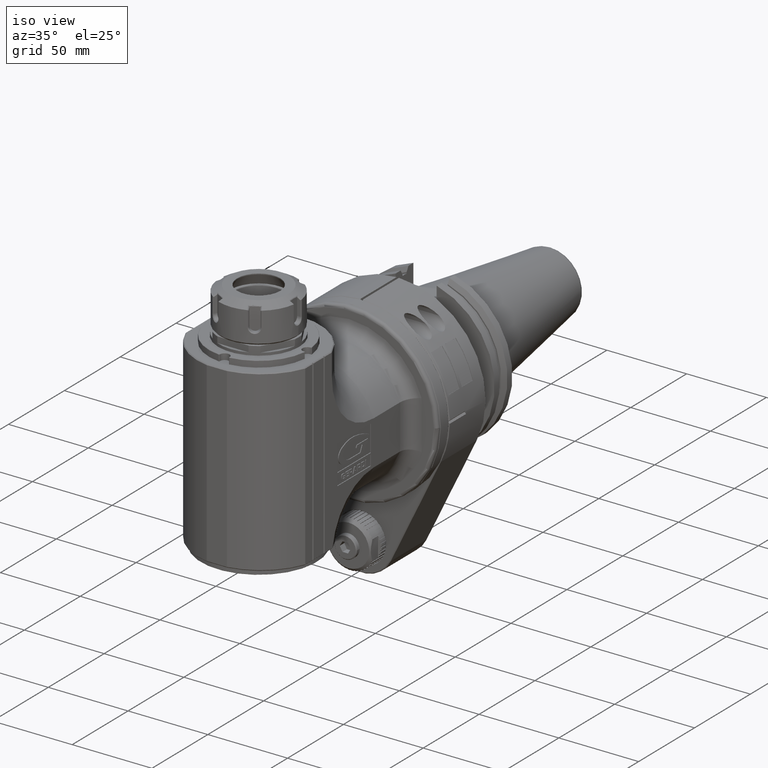
[diagram: clean part render]
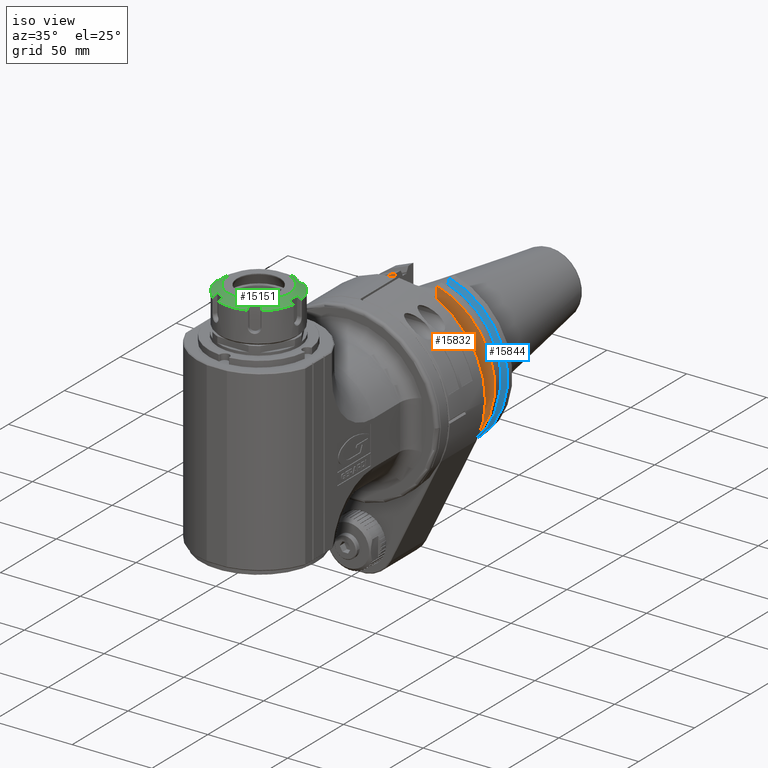
[diagram: same view with three faces highlighted in distinct colors, each labeled with its STEP entity id]
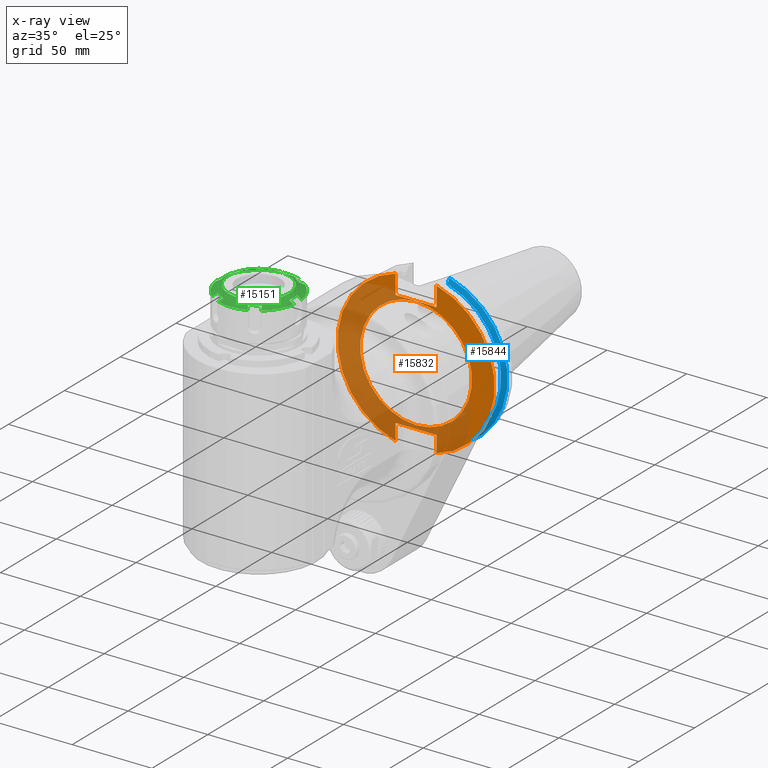
[diagram: x-ray of the same camera — body ghosted, the three highlighted faces saturated]
A machine part, iso view with three faces highlighted in distinct colors.
The next image is the same camera in x-ray (body ghosted, the three faces saturated) — at least one of them is partly hidden behind the body in this view.
Their STEP definitions:

[orange] entity #15832 — the highlighted planar face has unit normal (-0, -1, 0).
#714=FACE_BOUND('',#3013,.T.);
#1196=PLANE('',#17358);
#2055=FACE_OUTER_BOUND('',#3012,.T.);
#3012=EDGE_LOOP('',(#14659,#14660,#14661,#14662,#14663,#14664,#14665,#14666));
#3013=EDGE_LOOP('',(#14667));
#3648=CIRCLE('',#17359,49.21);
#3649=CIRCLE('',#17360,49.21);
#3650=CIRCLE('',#17361,35.);
#4962=LINE('',#29915,#6284);
#4969=LINE('',#29936,#6291);
#4975=LINE('',#29958,#6297);
#4976=LINE('',#29963,#6298);
#4977=LINE('',#29965,#6299);
#4978=LINE('',#29967,#6300);
#6284=VECTOR('',#21576,10.30264834722);
#6291=VECTOR('',#21585,25.7);
#6297=VECTOR('',#21595,10.30264834722);
#6298=VECTOR('',#21600,12.20264834722);
#6299=VECTOR('',#21601,25.7);
#6300=VECTOR('',#21602,12.20264834722);
#7780=VERTEX_POINT('',#29912);
#7781=VERTEX_POINT('',#29914);
#7788=VERTEX_POINT('',#29934);
#7796=VERTEX_POINT('',#29956);
#7797=VERTEX_POINT('',#29960);
#7798=VERTEX_POINT('',#29962);
#7799=VERTEX_POINT('',#29964);
#7800=VERTEX_POINT('',#29966);
#7801=VERTEX_POINT('',#29969);
#10078=EDGE_CURVE('',#7780,#7781,#4962,.T.);
#10087=EDGE_CURVE('',#7780,#7788,#4969,.T.);
#10096=EDGE_CURVE('',#7788,#7796,#4975,.T.);
#10097=EDGE_CURVE('',#7797,#7796,#3648,.T.);
#10098=EDGE_CURVE('',#7798,#7797,#4976,.T.);
#10099=EDGE_CURVE('',#7799,#7798,#4977,.T.);
#10100=EDGE_CURVE('',#7799,#7800,#4978,.T.);
#10101=EDGE_CURVE('',#7781,#7800,#3649,.T.);
#10102=EDGE_CURVE('',#7801,#7801,#3650,.T.);
#14659=ORIENTED_EDGE('',*,*,#10096,.T.);
#14660=ORIENTED_EDGE('',*,*,#10097,.F.);
#14661=ORIENTED_EDGE('',*,*,#10098,.F.);
#14662=ORIENTED_EDGE('',*,*,#10099,.F.);
#14663=ORIENTED_EDGE('',*,*,#10100,.T.);
#14664=ORIENTED_EDGE('',*,*,#10101,.F.);
#14665=ORIENTED_EDGE('',*,*,#10078,.F.);
#14666=ORIENTED_EDGE('',*,*,#10087,.T.);
#14667=ORIENTED_EDGE('',*,*,#10102,.F.);
#15832=ADVANCED_FACE('',(#2055,#714),#1196,.T.);
#17358=AXIS2_PLACEMENT_3D('',#29959,#21596,#21597);
#17359=AXIS2_PLACEMENT_3D('',#29961,#21598,#21599);
#17360=AXIS2_PLACEMENT_3D('',#29968,#21603,#21604);
#17361=AXIS2_PLACEMENT_3D('',#29970,#21605,#21606);
#21576=DIRECTION('',(-3.069031444701E-14,0.,-1.));
#21585=DIRECTION('',(1.,0.,0.));
#21595=DIRECTION('',(3.034547945323E-14,0.,-1.));
#21596=DIRECTION('center_axis',(0.,-1.,0.));
#21597=DIRECTION('ref_axis',(0.,0.,1.));
#21598=DIRECTION('center_axis',(0.,1.,0.));
#21599=DIRECTION('ref_axis',(0.261125787441599,0.,0.965304782508097));
#21600=DIRECTION('',(2.605728405875E-14,0.,1.));
#21601=DIRECTION('',(1.,0.,0.));
#21602=DIRECTION('',(-2.605728405875E-14,0.,1.));
#21603=DIRECTION('center_axis',(0.,1.,0.));
#21604=DIRECTION('ref_axis',(-0.261125787441599,0.,-0.965304782508097));
#21605=DIRECTION('center_axis',(0.,-1.,0.));
#21606=DIRECTION('ref_axis',(0.,0.,1.));
#29912=CARTESIAN_POINT('',(-12.85,48.9,-37.2));
#29914=CARTESIAN_POINT('',(-12.85,48.9000000000001,-47.50264834722));
#29915=CARTESIAN_POINT('',(-12.85,48.9,-37.2));
#29934=CARTESIAN_POINT('',(12.85,48.9,-37.2));
#29936=CARTESIAN_POINT('',(-12.85,48.9,-37.2));
#29956=CARTESIAN_POINT('',(12.85,48.9000000000001,-47.50264834722));
#29958=CARTESIAN_POINT('',(12.85,48.9,-37.2));
#29959=CARTESIAN_POINT('Origin',(0.,48.9,2.00000000003435E-20));
#29960=CARTESIAN_POINT('',(12.85,48.9000000000001,47.50264834722));
#29961=CARTESIAN_POINT('Origin',(0.,48.9000000000003,-1.480248809205E-14));
#29962=CARTESIAN_POINT('',(12.85,48.9,35.3));
#29963=CARTESIAN_POINT('',(12.85,48.9,35.3));
#29964=CARTESIAN_POINT('',(-12.85,48.9,35.3));
#29965=CARTESIAN_POINT('',(-12.85,48.9,35.3));
#29966=CARTESIAN_POINT('',(-12.85,48.9000000000003,47.50264834722));
#29967=CARTESIAN_POINT('',(-12.85,48.9,35.3));
#29968=CARTESIAN_POINT('Origin',(0.,48.9000000000003,-1.480248809205E-14));
#29969=CARTESIAN_POINT('',(4.28626379701574E-15,48.9,-35.));
#29970=CARTESIAN_POINT('Origin',(0.,48.9,-2.65337952111E-15));

[blue] entity #15844 — the highlighted conical surface has half-angle 60 deg.
#233=CONICAL_SURFACE('',#17380,47.7912976321,1.0471975511966);
#633=(
BOUNDED_CURVE()
B_SPLINE_CURVE(2,(#29943,#29944,#29945),.UNSPECIFIED.,.F.,.F.)
B_SPLINE_CURVE_WITH_KNOTS((3,3),(0.823553183506386,1.11194731601354),
 .UNSPECIFIED.)
CURVE()
GEOMETRIC_REPRESENTATION_ITEM()
RATIONAL_B_SPLINE_CURVE((1.02798139258353,1.03149394839377,1.03403527585196))
REPRESENTATION_ITEM('')
);
#638=(
BOUNDED_CURVE()
B_SPLINE_CURVE(2,(#30019,#30020,#30021),.UNSPECIFIED.,.F.,.F.)
B_SPLINE_CURVE_WITH_KNOTS((3,3),(-1.11194731601358,-0.823553183506386),
 .UNSPECIFIED.)
CURVE()
GEOMETRIC_REPRESENTATION_ITEM()
RATIONAL_B_SPLINE_CURVE((1.03403527585196,1.03149394839377,1.02798139258353))
REPRESENTATION_ITEM('')
);
#2067=FACE_OUTER_BOUND('',#3025,.T.);
#3025=EDGE_LOOP('',(#14724,#14725,#14726,#14727));
#3657=CIRCLE('',#17379,49.21);
#3658=CIRCLE('',#17381,46.37259526419);
#7790=VERTEX_POINT('',#29940);
#7791=VERTEX_POINT('',#29942);
#7812=VERTEX_POINT('',#30016);
#7813=VERTEX_POINT('',#30018);
#10090=EDGE_CURVE('',#7790,#7791,#633,.T.);
#10123=EDGE_CURVE('',#7812,#7813,#638,.T.);
#10125=EDGE_CURVE('',#7813,#7790,#3657,.T.);
#10126=EDGE_CURVE('',#7812,#7791,#3658,.T.);
#14724=ORIENTED_EDGE('',*,*,#10090,.F.);
#14725=ORIENTED_EDGE('',*,*,#10125,.F.);
#14726=ORIENTED_EDGE('',*,*,#10123,.F.);
#14727=ORIENTED_EDGE('',*,*,#10126,.T.);
#15844=ADVANCED_FACE('',(#2067),#233,.T.);
#17379=AXIS2_PLACEMENT_3D('',#30024,#21653,#21654);
#17380=AXIS2_PLACEMENT_3D('',#30025,#21655,#21656);
#17381=AXIS2_PLACEMENT_3D('',#30026,#21657,#21658);
#21653=DIRECTION('center_axis',(0.,1.,0.));
#21654=DIRECTION('ref_axis',(0.261125787441599,0.,0.965304782508097));
#21655=DIRECTION('center_axis',(0.,1.,0.));
#21656=DIRECTION('ref_axis',(0.,0.,-1.));
#21657=DIRECTION('center_axis',(0.,1.,0.));
#21658=DIRECTION('ref_axis',(0.277103317741691,0.,0.96084012785507));
#29940=CARTESIAN_POINT('',(12.85,60.41317638802,-47.50264834722));
#29942=CARTESIAN_POINT('',(12.85,58.774999999999,-44.55665036262));
#29943=CARTESIAN_POINT('Ctrl Pts',(12.85,60.4131763880155,-47.502648347221));
#29944=CARTESIAN_POINT('Ctrl Pts',(12.85,59.5678764782693,-45.9859228343631));
#29945=CARTESIAN_POINT('Ctrl Pts',(12.85,58.7749999999978,-44.5566503626167));
#30016=CARTESIAN_POINT('',(12.85,58.774999999998,44.55665036262));
#30018=CARTESIAN_POINT('',(12.85,60.41317638802,47.50264834722));
#30019=CARTESIAN_POINT('Ctrl Pts',(12.85,58.7749999999975,44.5566503626162));
#30020=CARTESIAN_POINT('Ctrl Pts',(12.85,59.5678764782692,45.9859228343628));
#30021=CARTESIAN_POINT('Ctrl Pts',(12.85,60.4131763880155,47.502648347221));
#30024=CARTESIAN_POINT('Origin',(0.,60.41317638802,-1.480248809205E-14));
#30025=CARTESIAN_POINT('Origin',(0.,59.59408819401,-1.480248809205E-14));
#30026=CARTESIAN_POINT('Origin',(0.,58.774999999998,-1.480248809205E-14));

[green] entity #15151 — the highlighted conical surface has half-angle 60 deg.
#156=CONICAL_SURFACE('',#16261,21.875,1.0471975511966);
#386=B_SPLINE_CURVE_WITH_KNOTS('',3,(#23593,#23594,#23595,#23596,#23597,
#23598),.UNSPECIFIED.,.F.,.F.,(4,2,4),(1.75304187007137E-6,0.17996819413628,
0.354706484369511),.UNSPECIFIED.);
#387=B_SPLINE_CURVE_WITH_KNOTS('',3,(#23600,#23601,#23602,#23603,#23604,
#23605),.UNSPECIFIED.,.F.,.F.,(4,2,4),(6.56432522016495E-6,0.158648987589826,
0.312349172762832),.UNSPECIFIED.);
#388=B_SPLINE_CURVE_WITH_KNOTS('',3,(#23614,#23615,#23616,#23617,#23618,
#23619),.UNSPECIFIED.,.F.,.F.,(4,2,4),(9.99999987011391E-7,0.153548746783539,
0.311883061010087),.UNSPECIFIED.);
#389=B_SPLINE_CURVE_WITH_KNOTS('',3,(#23621,#23622,#23623,#23624,#23625,
#23626,#23627,#23628),.UNSPECIFIED.,.F.,.F.,(4,2,2,4),(3.04414033368429E-6,
0.177048169692717,0.353291981125611,0.710275238715061),.UNSPECIFIED.);
#390=B_SPLINE_CURVE_WITH_KNOTS('',3,(#23630,#23631,#23632,#23633,#23634,
#23635),.UNSPECIFIED.,.F.,.F.,(4,2,4),(1.32933227955289E-6,0.158569850540681,
0.312342940408613),.UNSPECIFIED.);
#391=B_SPLINE_CURVE_WITH_KNOTS('',3,(#23644,#23645,#23646,#23647,#23648,
#23649),.UNSPECIFIED.,.F.,.F.,(4,2,4),(9.99999984052789E-7,0.153549233279315,
0.311884353468715),.UNSPECIFIED.);
#392=B_SPLINE_CURVE_WITH_KNOTS('',3,(#23651,#23652,#23653,#23654,#23655,
#23656,#23657,#23658,#23659,#23660),.UNSPECIFIED.,.F.,.F.,(4,2,2,2,4),(3.43894642304029E-6,
0.179256816632653,0.356213165136128,0.532342430280622,0.709279107649565),
 .UNSPECIFIED.);
#393=B_SPLINE_CURVE_WITH_KNOTS('',3,(#23662,#23663,#23664,#23665,#23666,
#23667),.UNSPECIFIED.,.F.,.F.,(4,2,4),(2.07933996886511E-6,0.15856975594841,
0.312342359709188),.UNSPECIFIED.);
#394=B_SPLINE_CURVE_WITH_KNOTS('',3,(#23672,#23673,#23674,#23675,#23676,
#23677),.UNSPECIFIED.,.F.,.F.,(4,2,4),(9.99999985206051E-7,0.15354880519204,
0.311879056820838),.UNSPECIFIED.);
#395=B_SPLINE_CURVE_WITH_KNOTS('',3,(#23679,#23680,#23681,#23682,#23683,
#23684),.UNSPECIFIED.,.F.,.F.,(4,2,4),(4.04179786290813E-6,0.17471943778046,
0.354667402657802),.UNSPECIFIED.);
#396=B_SPLINE_CURVE_WITH_KNOTS('',3,(#23686,#23687,#23688,#23689,#23690,
#23691),.UNSPECIFIED.,.F.,.F.,(4,2,4),(1.75304187039636E-6,0.1799681916321,
0.354706506524924),.UNSPECIFIED.);
#397=B_SPLINE_CURVE_WITH_KNOTS('',3,(#23693,#23694,#23695,#23696,#23697,
#23698),.UNSPECIFIED.,.F.,.F.,(4,2,4),(6.56392415075571E-6,0.158570174629406,
0.312342838192514),.UNSPECIFIED.);
#398=B_SPLINE_CURVE_WITH_KNOTS('',3,(#23707,#23708,#23709,#23710,#23711,
#23712),.UNSPECIFIED.,.F.,.F.,(4,2,4),(9.99999986928124E-7,0.15354874678184,
0.311883061007132),.UNSPECIFIED.);
#399=B_SPLINE_CURVE_WITH_KNOTS('',3,(#23714,#23715,#23716,#23717,#23718,
#23719,#23720,#23721),.UNSPECIFIED.,.F.,.F.,(4,2,2,4),(3.04414033422406E-6,
0.177048169692953,0.353291981126197,0.710275238716467),.UNSPECIFIED.);
#400=B_SPLINE_CURVE_WITH_KNOTS('',3,(#23723,#23724,#23725,#23726,#23727,
#23728),.UNSPECIFIED.,.F.,.F.,(4,2,4),(1.32933227850868E-6,0.158569850533765,
0.312342940387268),.UNSPECIFIED.);
#401=B_SPLINE_CURVE_WITH_KNOTS('',3,(#23737,#23738,#23739,#23740,#23741,
#23742),.UNSPECIFIED.,.F.,.F.,(4,2,4),(9.9999998453141E-7,0.15354923327797,
0.311884353450521),.UNSPECIFIED.);
#402=B_SPLINE_CURVE_WITH_KNOTS('',3,(#23744,#23745,#23746,#23747,#23748,
#23749,#23750,#23751,#23752,#23753),.UNSPECIFIED.,.F.,.F.,(4,2,2,2,4),(3.43894642381711E-6,
0.179256816427941,0.356213164731001,0.532342429128793,0.70927911520143),
 .UNSPECIFIED.);
#403=B_SPLINE_CURVE_WITH_KNOTS('',3,(#23755,#23756,#23757,#23758,#23759,
#23760),.UNSPECIFIED.,.F.,.F.,(4,2,4),(2.07505843591796E-6,0.158542687376933,
0.312340213231411),.UNSPECIFIED.);
#404=B_SPLINE_CURVE_WITH_KNOTS('',3,(#23769,#23770,#23771,#23772,#23773,
#23774),.UNSPECIFIED.,.F.,.F.,(4,2,4),(9.99999986983635E-7,0.153548805177098,
0.311879056789855),.UNSPECIFIED.);
#405=B_SPLINE_CURVE_WITH_KNOTS('',3,(#23775,#23776,#23777,#23778,#23779,
#23780),.UNSPECIFIED.,.F.,.F.,(4,2,4),(4.04179786372171E-6,0.174719437780483,
0.354667402657859),.UNSPECIFIED.);
#572=(
BOUNDED_CURVE()
B_SPLINE_CURVE(2,(#23579,#23580,#23581),.UNSPECIFIED.,.F.,.F.)
B_SPLINE_CURVE_WITH_KNOTS((3,3),(-1.82654082027049,-1.82066003771916),
 .UNSPECIFIED.)
CURVE()
GEOMETRIC_REPRESENTATION_ITEM()
RATIONAL_B_SPLINE_CURVE((1.10514898114972,1.10514190550912,1.10513378545536))
REPRESENTATION_ITEM('')
);
#573=(
BOUNDED_CURVE()
B_SPLINE_CURVE(2,(#23606,#23607,#23608),.UNSPECIFIED.,.F.,.F.)
B_SPLINE_CURVE_WITH_KNOTS((3,3),(1.82066009604865,1.82654082051237),
 .UNSPECIFIED.)
CURVE()
GEOMETRIC_REPRESENTATION_ITEM()
RATIONAL_B_SPLINE_CURVE((1.10513378565989,1.1051419056232,1.10514898119398))
REPRESENTATION_ITEM('')
);
#574=(
BOUNDED_CURVE()
B_SPLINE_CURVE(2,(#23610,#23611,#23612),.UNSPECIFIED.,.F.,.F.)
B_SPLINE_CURVE_WITH_KNOTS((3,3),(1.9062225038737,1.91210328641755),
 .UNSPECIFIED.)
CURVE()
GEOMETRIC_REPRESENTATION_ITEM()
RATIONAL_B_SPLINE_CURVE((1.10514898079948,1.10514190515945,1.10513378510626))
REPRESENTATION_ITEM('')
);
#575=(
BOUNDED_CURVE()
B_SPLINE_CURVE(2,(#23636,#23637,#23638),.UNSPECIFIED.,.F.,.F.)
B_SPLINE_CURVE_WITH_KNOTS((3,3),(1.82066003554759,1.82654081595318),
 .UNSPECIFIED.)
CURVE()
GEOMETRIC_REPRESENTATION_ITEM()
RATIONAL_B_SPLINE_CURVE((1.10513378467658,1.10514190472575,1.10514898036251))
REPRESENTATION_ITEM('')
);
#576=(
BOUNDED_CURVE()
B_SPLINE_CURVE(2,(#23640,#23641,#23642),.UNSPECIFIED.,.F.,.F.)
B_SPLINE_CURVE_WITH_KNOTS((3,3),(1.90622249082826,1.91210327336139),
 .UNSPECIFIED.)
CURVE()
GEOMETRIC_REPRESENTATION_ITEM()
RATIONAL_B_SPLINE_CURVE((1.10514898025349,1.10514190461434,1.10513378456203))
REPRESENTATION_ITEM('')
);
#577=(
BOUNDED_CURVE()
B_SPLINE_CURVE(2,(#23668,#23669,#23670),.UNSPECIFIED.,.F.,.F.)
B_SPLINE_CURVE_WITH_KNOTS((3,3),(1.82066003857861,1.82654081899518),
 .UNSPECIFIED.)
CURVE()
GEOMETRIC_REPRESENTATION_ITEM()
RATIONAL_B_SPLINE_CURVE((1.10513378522961,1.10514190527967,1.10514898091733))
REPRESENTATION_ITEM('')
);
#578=(
BOUNDED_CURVE()
B_SPLINE_CURVE(2,(#23699,#23700,#23701),.UNSPECIFIED.,.F.,.F.)
B_SPLINE_CURVE_WITH_KNOTS((3,3),(1.82066004008948,1.82654082051237),
 .UNSPECIFIED.)
CURVE()
GEOMETRIC_REPRESENTATION_ITEM()
RATIONAL_B_SPLINE_CURVE((1.10513378550536,1.10514190555587,1.10514898119398))
REPRESENTATION_ITEM('')
);
#579=(
BOUNDED_CURVE()
B_SPLINE_CURVE(2,(#23703,#23704,#23705),.UNSPECIFIED.,.F.,.F.)
B_SPLINE_CURVE_WITH_KNOTS((3,3),(1.9062225038737,1.91210328641755),
 .UNSPECIFIED.)
CURVE()
GEOMETRIC_REPRESENTATION_ITEM()
RATIONAL_B_SPLINE_CURVE((1.10514898079948,1.10514190515945,1.10513378510626))
REPRESENTATION_ITEM('')
);
#580=(
BOUNDED_CURVE()
B_SPLINE_CURVE(2,(#23729,#23730,#23731),.UNSPECIFIED.,.F.,.F.)
B_SPLINE_CURVE_WITH_KNOTS((3,3),(1.82066003554759,1.82654081595318),
 .UNSPECIFIED.)
CURVE()
GEOMETRIC_REPRESENTATION_ITEM()
RATIONAL_B_SPLINE_CURVE((1.10513378467658,1.10514190472575,1.10514898036251))
REPRESENTATION_ITEM('')
);
#581=(
BOUNDED_CURVE()
B_SPLINE_CURVE(2,(#23733,#23734,#23735),.UNSPECIFIED.,.F.,.F.)
B_SPLINE_CURVE_WITH_KNOTS((3,3),(1.90622249082826,1.91210327336139),
 .UNSPECIFIED.)
CURVE()
GEOMETRIC_REPRESENTATION_ITEM()
RATIONAL_B_SPLINE_CURVE((1.10514898025349,1.10514190461434,1.10513378456203))
REPRESENTATION_ITEM('')
);
#582=(
BOUNDED_CURVE()
B_SPLINE_CURVE(2,(#23761,#23762,#23763),.UNSPECIFIED.,.F.,.F.)
B_SPLINE_CURVE_WITH_KNOTS((3,3),(1.82066001950823,1.82654081899558),
 .UNSPECIFIED.)
CURVE()
GEOMETRIC_REPRESENTATION_ITEM()
RATIONAL_B_SPLINE_CURVE((1.10513378517697,1.10514190525675,1.10514898091736))
REPRESENTATION_ITEM('')
);
#583=(
BOUNDED_CURVE()
B_SPLINE_CURVE(2,(#23765,#23766,#23767),.UNSPECIFIED.,.F.,.F.)
B_SPLINE_CURVE_WITH_KNOTS((3,3),(-1.82654082027049,-1.82066003771916),
 .UNSPECIFIED.)
CURVE()
GEOMETRIC_REPRESENTATION_ITEM()
RATIONAL_B_SPLINE_CURVE((1.10514898114972,1.10514190550912,1.10513378545536))
REPRESENTATION_ITEM('')
);
#1374=FACE_OUTER_BOUND('',#2273,.T.);
#2273=EDGE_LOOP('',(#11016,#11017,#11018,#11019,#11020,#11021,#11022,#11023,
#11024,#11025,#11026,#11027,#11028,#11029,#11030,#11031,#11032,#11033,#11034,
#11035,#11036,#11037,#11038,#11039,#11040,#11041,#11042,#11043,#11044,#11045,
#11046,#11047,#11048,#11049,#11050,#11051,#11052,#11053,#11054,#11055,#11056));
#3222=CIRCLE('',#16254,24.75);
#3223=CIRCLE('',#16255,24.75);
#3224=CIRCLE('',#16256,24.75);
#3225=CIRCLE('',#16257,24.75);
#3226=CIRCLE('',#16258,24.75);
#3227=CIRCLE('',#16259,24.75);
#3228=CIRCLE('',#16262,19.);
#3884=LINE('',#23782,#5206);
#5206=VECTOR('',#18312,21.875);
#6597=VERTEX_POINT('',#23260);
#6598=VERTEX_POINT('',#23262);
#6601=VERTEX_POINT('',#23297);
#6602=VERTEX_POINT('',#23299);
#6605=VERTEX_POINT('',#23328);
#6606=VERTEX_POINT('',#23330);
#6610=VERTEX_POINT('',#23365);
#6611=VERTEX_POINT('',#23367);
#6614=VERTEX_POINT('',#23402);
#6615=VERTEX_POINT('',#23404);
#6618=VERTEX_POINT('',#23433);
#6619=VERTEX_POINT('',#23435);
#6624=VERTEX_POINT('',#23578);
#6626=VERTEX_POINT('',#23591);
#6627=VERTEX_POINT('',#23592);
#6628=VERTEX_POINT('',#23599);
#6629=VERTEX_POINT('',#23609);
#6630=VERTEX_POINT('',#23613);
#6631=VERTEX_POINT('',#23620);
#6632=VERTEX_POINT('',#23629);
#6633=VERTEX_POINT('',#23639);
#6634=VERTEX_POINT('',#23643);
#6635=VERTEX_POINT('',#23650);
#6636=VERTEX_POINT('',#23661);
#6637=VERTEX_POINT('',#23671);
#6638=VERTEX_POINT('',#23678);
#6639=VERTEX_POINT('',#23685);
#6640=VERTEX_POINT('',#23692);
#6641=VERTEX_POINT('',#23702);
#6642=VERTEX_POINT('',#23706);
#6643=VERTEX_POINT('',#23713);
#6644=VERTEX_POINT('',#23722);
#6645=VERTEX_POINT('',#23732);
#6646=VERTEX_POINT('',#23736);
#6647=VERTEX_POINT('',#23743);
#6648=VERTEX_POINT('',#23754);
#6649=VERTEX_POINT('',#23764);
#6650=VERTEX_POINT('',#23768);
#6651=VERTEX_POINT('',#23781);
#8260=EDGE_CURVE('',#6597,#6598,#3222,.T.);
#8264=EDGE_CURVE('',#6601,#6602,#3223,.T.);
#8268=EDGE_CURVE('',#6605,#6606,#3224,.T.);
#8274=EDGE_CURVE('',#6611,#6610,#3225,.T.);
#8278=EDGE_CURVE('',#6615,#6614,#3226,.T.);
#8282=EDGE_CURVE('',#6619,#6618,#3227,.T.);
#8290=EDGE_CURVE('',#6610,#6624,#572,.T.);
#8293=EDGE_CURVE('',#6626,#6627,#386,.T.);
#8294=EDGE_CURVE('',#6627,#6628,#387,.T.);
#8295=EDGE_CURVE('',#6628,#6619,#573,.T.);
#8296=EDGE_CURVE('',#6618,#6629,#574,.T.);
#8297=EDGE_CURVE('',#6629,#6630,#388,.T.);
#8298=EDGE_CURVE('',#6630,#6631,#389,.T.);
#8299=EDGE_CURVE('',#6631,#6632,#390,.T.);
#8300=EDGE_CURVE('',#6632,#6615,#575,.T.);
#8301=EDGE_CURVE('',#6614,#6633,#576,.T.);
#8302=EDGE_CURVE('',#6633,#6634,#391,.T.);
#8303=EDGE_CURVE('',#6634,#6635,#392,.T.);
#8304=EDGE_CURVE('',#6635,#6636,#393,.T.);
#8305=EDGE_CURVE('',#6636,#6611,#577,.T.);
#8306=EDGE_CURVE('',#6624,#6637,#394,.T.);
#8307=EDGE_CURVE('',#6637,#6638,#395,.T.);
#8308=EDGE_CURVE('',#6638,#6639,#396,.T.);
#8309=EDGE_CURVE('',#6639,#6640,#397,.T.);
#8310=EDGE_CURVE('',#6640,#6606,#578,.T.);
#8311=EDGE_CURVE('',#6605,#6641,#579,.T.);
#8312=EDGE_CURVE('',#6641,#6642,#398,.T.);
#8313=EDGE_CURVE('',#6642,#6643,#399,.T.);
#8314=EDGE_CURVE('',#6643,#6644,#400,.T.);
#8315=EDGE_CURVE('',#6644,#6602,#580,.T.);
#8316=EDGE_CURVE('',#6601,#6645,#581,.T.);
#8317=EDGE_CURVE('',#6645,#6646,#401,.T.);
#8318=EDGE_CURVE('',#6646,#6647,#402,.T.);
#8319=EDGE_CURVE('',#6647,#6648,#403,.T.);
#8320=EDGE_CURVE('',#6648,#6598,#582,.T.);
#8321=EDGE_CURVE('',#6597,#6649,#583,.T.);
#8322=EDGE_CURVE('',#6649,#6650,#404,.T.);
#8323=EDGE_CURVE('',#6650,#6626,#405,.T.);
#8324=EDGE_CURVE('',#6626,#6651,#3884,.T.);
#8325=EDGE_CURVE('',#6651,#6651,#3228,.T.);
#11016=ORIENTED_EDGE('',*,*,#8293,.T.);
#11017=ORIENTED_EDGE('',*,*,#8294,.T.);
#11018=ORIENTED_EDGE('',*,*,#8295,.T.);
#11019=ORIENTED_EDGE('',*,*,#8282,.T.);
#11020=ORIENTED_EDGE('',*,*,#8296,.T.);
#11021=ORIENTED_EDGE('',*,*,#8297,.T.);
#11022=ORIENTED_EDGE('',*,*,#8298,.T.);
#11023=ORIENTED_EDGE('',*,*,#8299,.T.);
#11024=ORIENTED_EDGE('',*,*,#8300,.T.);
#11025=ORIENTED_EDGE('',*,*,#8278,.T.);
#11026=ORIENTED_EDGE('',*,*,#8301,.T.);
#11027=ORIENTED_EDGE('',*,*,#8302,.T.);
#11028=ORIENTED_EDGE('',*,*,#8303,.T.);
#11029=ORIENTED_EDGE('',*,*,#8304,.T.);
#11030=ORIENTED_EDGE('',*,*,#8305,.T.);
#11031=ORIENTED_EDGE('',*,*,#8274,.T.);
#11032=ORIENTED_EDGE('',*,*,#8290,.T.);
#11033=ORIENTED_EDGE('',*,*,#8306,.T.);
#11034=ORIENTED_EDGE('',*,*,#8307,.T.);
#11035=ORIENTED_EDGE('',*,*,#8308,.T.);
#11036=ORIENTED_EDGE('',*,*,#8309,.T.);
#11037=ORIENTED_EDGE('',*,*,#8310,.T.);
#11038=ORIENTED_EDGE('',*,*,#8268,.F.);
#11039=ORIENTED_EDGE('',*,*,#8311,.T.);
#11040=ORIENTED_EDGE('',*,*,#8312,.T.);
#11041=ORIENTED_EDGE('',*,*,#8313,.T.);
#11042=ORIENTED_EDGE('',*,*,#8314,.T.);
#11043=ORIENTED_EDGE('',*,*,#8315,.T.);
#11044=ORIENTED_EDGE('',*,*,#8264,.F.);
#11045=ORIENTED_EDGE('',*,*,#8316,.T.);
#11046=ORIENTED_EDGE('',*,*,#8317,.T.);
#11047=ORIENTED_EDGE('',*,*,#8318,.T.);
#11048=ORIENTED_EDGE('',*,*,#8319,.T.);
#11049=ORIENTED_EDGE('',*,*,#8320,.T.);
#11050=ORIENTED_EDGE('',*,*,#8260,.F.);
#11051=ORIENTED_EDGE('',*,*,#8321,.T.);
#11052=ORIENTED_EDGE('',*,*,#8322,.T.);
#11053=ORIENTED_EDGE('',*,*,#8323,.T.);
#11054=ORIENTED_EDGE('',*,*,#8324,.T.);
#11055=ORIENTED_EDGE('',*,*,#8325,.F.);
#11056=ORIENTED_EDGE('',*,*,#8324,.F.);
#15151=ADVANCED_FACE('',(#1374),#156,.T.);
#16254=AXIS2_PLACEMENT_3D('',#23263,#18280,#18281);
#16255=AXIS2_PLACEMENT_3D('',#23300,#18284,#18285);
#16256=AXIS2_PLACEMENT_3D('',#23331,#18288,#18289);
#16257=AXIS2_PLACEMENT_3D('',#23368,#18293,#18294);
#16258=AXIS2_PLACEMENT_3D('',#23405,#18297,#18298);
#16259=AXIS2_PLACEMENT_3D('',#23436,#18301,#18302);
#16261=AXIS2_PLACEMENT_3D('',#23590,#18310,#18311);
#16262=AXIS2_PLACEMENT_3D('',#23783,#18313,#18314);
#18280=DIRECTION('center_axis',(0.,0.,-1.));
#18281=DIRECTION('ref_axis',(-0.989529626064201,0.1443298969072,0.));
#18284=DIRECTION('center_axis',(0.,0.,-1.));
#18285=DIRECTION('ref_axis',(-0.369771455784902,0.929122742422504,0.));
#18288=DIRECTION('center_axis',(0.,0.,-1.));
#18289=DIRECTION('ref_axis',(0.619758170279316,0.784792845515321,0.));
#18293=DIRECTION('center_axis',(0.,0.,1.));
#18294=DIRECTION('ref_axis',(0.619758170279316,-0.784792845515321,0.));
#18297=DIRECTION('center_axis',(0.,0.,1.));
#18298=DIRECTION('ref_axis',(-0.369771455784902,-0.929122742422504,0.));
#18301=DIRECTION('center_axis',(0.,0.,1.));
#18302=DIRECTION('ref_axis',(-0.989529626064201,-0.1443298969072,0.));
#18310=DIRECTION('center_axis',(0.,0.,-1.));
#18311=DIRECTION('ref_axis',(1.,0.,0.));
#18312=DIRECTION('',(0.866025403784439,-1.06057523872491E-16,0.5));
#18313=DIRECTION('center_axis',(0.,0.,1.));
#18314=DIRECTION('ref_axis',(-1.,0.,0.));
#23260=CARTESIAN_POINT('',(-24.49085824509,3.572164948454,95.18023595216));
#23262=CARTESIAN_POINT('',(-15.33901471441,19.4236229265,95.18023595216));
#23263=CARTESIAN_POINT('Origin',(0.,0.,95.18023595216));
#23297=CARTESIAN_POINT('',(-9.151843530675,22.99578787496,95.18023595216));
#23299=CARTESIAN_POINT('',(9.151843530675,22.99578787496,95.18023595216));
#23300=CARTESIAN_POINT('Origin',(0.,0.,95.18023595216));
#23328=CARTESIAN_POINT('',(15.33901471441,19.4236229265,95.18023595216));
#23330=CARTESIAN_POINT('',(24.49085824509,3.572164948454,95.18023595216));
#23331=CARTESIAN_POINT('Origin',(0.,0.,95.18023595216));
#23365=CARTESIAN_POINT('',(24.49085824509,-3.572164948454,95.18023595216));
#23367=CARTESIAN_POINT('',(15.33901471441,-19.4236229265,95.18023595216));
#23368=CARTESIAN_POINT('Origin',(0.,0.,95.18023595216));
#23402=CARTESIAN_POINT('',(9.151843530675,-22.99578787496,95.18023595216));
#23404=CARTESIAN_POINT('',(-9.151843530675,-22.99578787496,95.18023595216));
#23405=CARTESIAN_POINT('Origin',(0.,0.,95.18023595216));
#23433=CARTESIAN_POINT('',(-15.33901471441,-19.4236229265,95.18023595216));
#23435=CARTESIAN_POINT('',(-24.49085824509,-3.572164948454,95.18023595216));
#23436=CARTESIAN_POINT('Origin',(0.,0.,95.18023595216));
#23578=CARTESIAN_POINT('',(24.4594052314,-3.535791480735,95.20122462781));
#23579=CARTESIAN_POINT('Ctrl Pts',(24.4908582450911,-3.57216494845232,95.1802359521587));
#23580=CARTESIAN_POINT('Ctrl Pts',(24.4751201800046,-3.55396484819911,95.1907437849392));
#23581=CARTESIAN_POINT('Ctrl Pts',(24.4594052314032,-3.53579148073306,95.2012246278114));
#23590=CARTESIAN_POINT('Origin',(0.,0.,96.84011797608));
#23591=CARTESIAN_POINT('',(-21.7499808090343,2.83624327067068E-10,96.9122934891958));
#23592=CARTESIAN_POINT('',(-21.7467883487102,-3.54015205252947,96.7488653067903));
#23593=CARTESIAN_POINT('Ctrl Pts',(-21.7499691532787,1.22659299384154E-9,
96.9123045690916));
#23594=CARTESIAN_POINT('Ctrl Pts',(-21.7498829063446,-0.599888107540386,
96.9123543638017));
#23595=CARTESIAN_POINT('Ctrl Pts',(-21.7496297887483,-1.19875346758195,
96.8981694232009));
#23596=CARTESIAN_POINT('Ctrl Pts',(-21.7485986930423,-2.37973510870176,
96.8425881983916));
#23597=CARTESIAN_POINT('Ctrl Pts',(-21.7478323111091,-2.9601954991601,96.8020703767696));
#23598=CARTESIAN_POINT('Ctrl Pts',(-21.7467883497693,-3.5401520524348,96.7488653057375));
#23599=CARTESIAN_POINT('',(-24.45940554186,-3.535791839759,95.20122442076));
#23600=CARTESIAN_POINT('Ctrl Pts',(-21.7467883485422,-3.54015205177664,
96.7488653064977));
#23601=CARTESIAN_POINT('Ctrl Pts',(-22.2062689704675,-3.5393142813282,96.4871084462403));
#23602=CARTESIAN_POINT('Ctrl Pts',(-22.6658663332952,-3.53853969922833,
96.2250607913491));
#23603=CARTESIAN_POINT('Ctrl Pts',(-23.5700194850233,-3.537105917934,95.7091764975998));
#23604=CARTESIAN_POINT('Ctrl Pts',(-24.0152268375387,-3.53644286094339,
95.4549791472979));
#23605=CARTESIAN_POINT('Ctrl Pts',(-24.4594055418586,-3.53579183975959,
95.2012244207576));
#23606=CARTESIAN_POINT('Ctrl Pts',(-24.4594055418574,-3.53579183976026,
95.2012244207582));
#23607=CARTESIAN_POINT('Ctrl Pts',(-24.4751203354586,-3.55396502797811,
95.1907436811467));
#23608=CARTESIAN_POINT('Ctrl Pts',(-24.4908582450884,-3.57216494845534,
95.18023595216));
#23609=CARTESIAN_POINT('',(-15.2917878605,-19.41457055148,95.20122462781));
#23610=CARTESIAN_POINT('Ctrl Pts',(-15.3390147144112,-19.4236229264996,
95.1802359521625));
#23611=CARTESIAN_POINT('Ctrl Pts',(-15.3153839326988,-19.4190934124553,
95.1907437849424));
#23612=CARTESIAN_POINT('Ctrl Pts',(-15.2917878605016,-19.4145705514805,
95.2012246278139));
#23613=CARTESIAN_POINT('',(-13.9392386496139,-17.0631647559923,96.7488851485378));
#23614=CARTESIAN_POINT('Ctrl Pts',(-15.2917878605029,-19.4145705514806,
95.2012246278135));
#23615=CARTESIAN_POINT('Ctrl Pts',(-15.0701440266684,-19.0293698787928,
95.4551146435846));
#23616=CARTESIAN_POINT('Ctrl Pts',(-14.8480000863038,-18.6432779437846,
95.7094432352305));
#23617=CARTESIAN_POINT('Ctrl Pts',(-14.3971707171668,-17.8595499966079,
96.2253213366577));
#23618=CARTESIAN_POINT('Ctrl Pts',(-14.1681432359822,-17.4613138487574,
96.4872542549357));
#23619=CARTESIAN_POINT('Ctrl Pts',(-13.9392386489322,-17.0631647562062,
96.7488851482669));
#23620=CARTESIAN_POINT('',(-7.80750911436302,-20.603307178794,96.7488917031544));
#23621=CARTESIAN_POINT('Ctrl Pts',(-13.9392386500283,-17.0631647568856,
96.7488851475627));
#23622=CARTESIAN_POINT('Ctrl Pts',(-13.4308215682868,-17.3579239996892,
96.802797542224));
#23623=CARTESIAN_POINT('Ctrl Pts',(-12.9218821234943,-17.6526922250544,
96.8436596258105));
#23624=CARTESIAN_POINT('Ctrl Pts',(-11.9036492043468,-18.2418286844611,
96.898272234738));
#23625=CARTESIAN_POINT('Ctrl Pts',(-11.3964365957512,-18.5350319367375,
96.9120342523995));
#23626=CARTESIAN_POINT('Ctrl Pts',(-9.85823238619638,-19.423153028833,96.9127230800906));
#23627=CARTESIAN_POINT('Ctrl Pts',(-8.83554254092055,-20.0121876862555,
96.8577068746015));
#23628=CARTESIAN_POINT('Ctrl Pts',(-7.80750911374119,-20.6033071779096,
96.7488917042249));
#23629=CARTESIAN_POINT('',(-9.167617365192,-22.95036204866,95.20122462022));
#23630=CARTESIAN_POINT('Ctrl Pts',(-7.80750911378569,-20.6033071793246,
96.7488917034518));
#23631=CARTESIAN_POINT('Ctrl Pts',(-8.03786753090153,-21.0006250377856,
96.4872567946009));
#23632=CARTESIAN_POINT('Ctrl Pts',(-8.26823968879432,-21.3980925530774,
96.2253200581073));
#23633=CARTESIAN_POINT('Ctrl Pts',(-8.72155655733389,-22.1803919567324,
95.7094381834697));
#23634=CARTESIAN_POINT('Ctrl Pts',(-8.94484687346249,-22.5658147897654,
95.4551131715724));
#23635=CARTESIAN_POINT('Ctrl Pts',(-9.16761736519248,-22.9503620486596,
95.2012246202199));
#23636=CARTESIAN_POINT('Ctrl Pts',(-9.16761736519032,-22.9503620486596,
95.2012246202204));
#23637=CARTESIAN_POINT('Ctrl Pts',(-9.15973624444315,-22.9730582688931,
95.1907437811341));
#23638=CARTESIAN_POINT('Ctrl Pts',(-9.15184353067408,-22.9957878749593,
95.1802359521591));
#23639=CARTESIAN_POINT('',(9.1676173709,-22.95036203222,95.20122462781));
#23640=CARTESIAN_POINT('Ctrl Pts',(9.15184353067365,-22.9957878749592,95.1802359521592));
#23641=CARTESIAN_POINT('Ctrl Pts',(9.15973624730113,-22.9730582606613,95.1907437849397));
#23642=CARTESIAN_POINT('Ctrl Pts',(9.1676173708983,-22.9503620322203,95.2012246278119));
#23643=CARTESIAN_POINT('',(7.80750918202214,-20.6033074259373,96.7488915559009));
#23644=CARTESIAN_POINT('Ctrl Pts',(9.16761737089971,-22.950362032221,95.2012246278112));
#23645=CARTESIAN_POINT('Ctrl Pts',(8.94484430587114,-22.5658100646092,95.4551162549171));
#23646=CARTESIAN_POINT('Ctrl Pts',(8.72155378110626,-22.1803868567424,95.7094415109294));
#23647=CARTESIAN_POINT('Ctrl Pts',(8.26823682193951,-21.3980874468566,96.2253234041473));
#23648=CARTESIAN_POINT('Ctrl Pts',(8.0378660282225,-21.000622455307,96.4872584963224));
#23649=CARTESIAN_POINT('Ctrl Pts',(7.80750918146715,-20.6033074264474,96.7488915561868));
#23650=CARTESIAN_POINT('',(13.9392386272886,-17.06316484835,96.7488851154039));
#23651=CARTESIAN_POINT('Ctrl Pts',(7.80750918142438,-20.6033074250872,96.7488915569299));
#23652=CARTESIAN_POINT('Ctrl Pts',(8.32332850698727,-20.3067115588374,96.8034897389656));
#23653=CARTESIAN_POINT('Ctrl Pts',(8.83897954501564,-20.0099274704343,96.8446706194578));
#23654=CARTESIAN_POINT('Ctrl Pts',(9.86680529571166,-19.417831292876,96.8990415189047));
#23655=CARTESIAN_POINT('Ctrl Pts',(10.3771123924451,-19.1235641407184,96.9124890256468));
#23656=CARTESIAN_POINT('Ctrl Pts',(11.3963400768263,-18.5350875165528,96.912036252094));
#23657=CARTESIAN_POINT('Ctrl Pts',(11.9035617108076,-18.241879289911,96.8982755125277));
#23658=CARTESIAN_POINT('Ctrl Pts',(12.9218291468294,-17.6527230585041,96.843663810211));
#23659=CARTESIAN_POINT('Ctrl Pts',(13.4307949458518,-17.3579396089639,96.8028002860021));
#23660=CARTESIAN_POINT('Ctrl Pts',(13.9392386277095,-17.063164849257,96.7488851144138));
#23661=CARTESIAN_POINT('',(15.29178787759,-19.41457055476,95.20122462022));
#23662=CARTESIAN_POINT('Ctrl Pts',(13.9392386265965,-17.0631648485671,96.7488851151288));
#23663=CARTESIAN_POINT('Ctrl Pts',(14.1681448248147,-17.4613166216359,96.4872524346357));
#23664=CARTESIAN_POINT('Ctrl Pts',(14.3971737552515,-17.8595551183575,96.2253179340925));
#23665=CARTESIAN_POINT('Ctrl Pts',(14.8480031117719,-18.6432828926102,95.7094399113634));
#23666=CARTESIAN_POINT('Ctrl Pts',(15.0701468334113,-19.0293744622513,95.4551115620327));
#23667=CARTESIAN_POINT('Ctrl Pts',(15.2917878775911,-19.4145705547603,95.2012246202214));
#23668=CARTESIAN_POINT('Ctrl Pts',(15.2917878775906,-19.4145705547603,95.2012246202215));
#23669=CARTESIAN_POINT('Ctrl Pts',(15.3153839412552,-19.4190934140996,95.1907437811357));
#23670=CARTESIAN_POINT('Ctrl Pts',(15.3390147144099,-19.4236229265036,95.1802359521612));
#23671=CARTESIAN_POINT('',(21.7467883116723,-3.54015233851172,96.7488653013658));
#23672=CARTESIAN_POINT('Ctrl Pts',(24.4594052314013,-3.53579148073566,95.2012246278123));
#23673=CARTESIAN_POINT('Ctrl Pts',(24.0149895773289,-3.53644262663766,95.4551147401612));
#23674=CARTESIAN_POINT('Ctrl Pts',(23.5695520127136,-3.53710629874999,95.7094434291126));
#23675=CARTESIAN_POINT('Ctrl Pts',(22.6654206228259,-3.53854056754709,96.2253149078798));
#23676=CARTESIAN_POINT('Ctrl Pts',(22.2060360581672,-3.53931500350907,96.4872411046535));
#23677=CARTESIAN_POINT('Ctrl Pts',(21.7467883115047,-3.54015233776084,96.7488653010741));
#23678=CARTESIAN_POINT('',(21.7499773944748,5.93953464157678E-10,96.9122969107401));
#23679=CARTESIAN_POINT('Ctrl Pts',(21.7467883127286,-3.54015233841728,96.7488653003157));
#23680=CARTESIAN_POINT('Ctrl Pts',(21.7478320084879,-2.96020402622682,96.8020697625245));
#23681=CARTESIAN_POINT('Ctrl Pts',(21.7485980618965,-2.37975203843992,96.8425873706309));
#23682=CARTESIAN_POINT('Ctrl Pts',(21.7496293543798,-1.19877015100181,96.8981692767355));
#23683=CARTESIAN_POINT('Ctrl Pts',(21.7498830110461,-0.599896640295641,
96.9123543033672));
#23684=CARTESIAN_POINT('Ctrl Pts',(21.7499705653622,2.16727982782494E-9,
96.9123037538247));
#23685=CARTESIAN_POINT('',(21.7467883483146,3.54015227305601,96.7488652865579));
#23686=CARTESIAN_POINT('Ctrl Pts',(21.7499691532711,-1.22659299384154E-9,
96.9123045690959));
#23687=CARTESIAN_POINT('Ctrl Pts',(21.7498829063437,0.599888099193121,96.9123543638022));
#23688=CARTESIAN_POINT('Ctrl Pts',(21.7496297887549,1.19875345092975,96.898169423596));
#23689=CARTESIAN_POINT('Ctrl Pts',(21.7485986929998,2.37973516585324,96.8425881960794));
#23690=CARTESIAN_POINT('Ctrl Pts',(21.7478323109272,2.96019563802756,96.8020703672579));
#23691=CARTESIAN_POINT('Ctrl Pts',(21.7467883493723,3.54015227296145,96.7488652855064));
#23692=CARTESIAN_POINT('',(24.45940524278,3.535791493896,95.20122462022));
#23693=CARTESIAN_POINT('Ctrl Pts',(21.7467883481468,3.54015227230415,96.7488652862657));
#23694=CARTESIAN_POINT('Ctrl Pts',(22.2060392294298,3.53931499308403,96.487239298342));
#23695=CARTESIAN_POINT('Ctrl Pts',(22.6654265608175,3.53854063776013,96.2253115147925));
#23696=CARTESIAN_POINT('Ctrl Pts',(23.5695578049679,3.53710644448238,95.7094401088358));
#23697=CARTESIAN_POINT('Ctrl Pts',(24.0149949470639,3.53644276562741,95.4551116603388));
#23698=CARTESIAN_POINT('Ctrl Pts',(24.4594052427814,3.535791493897,95.2012246202224));
#23699=CARTESIAN_POINT('Ctrl Pts',(24.4594052427809,3.53579149389678,95.2012246202227));
#23700=CARTESIAN_POINT('Ctrl Pts',(24.4751201857005,3.55396485479215,95.1907437811357));
#23701=CARTESIAN_POINT('Ctrl Pts',(24.4908582450884,3.57216494845534,95.18023595216));
#23702=CARTESIAN_POINT('',(15.2917878605,19.41457055148,95.20122462781));
#23703=CARTESIAN_POINT('Ctrl Pts',(15.3390147144112,19.4236229264996,95.1802359521625));
#23704=CARTESIAN_POINT('Ctrl Pts',(15.3153839326988,19.4190934124553,95.1907437849424));
#23705=CARTESIAN_POINT('Ctrl Pts',(15.2917878605016,19.4145705514805,95.2012246278139));
#23706=CARTESIAN_POINT('',(13.9392386496139,17.0631647559924,96.7488851485378));
#23707=CARTESIAN_POINT('Ctrl Pts',(15.2917878605029,19.4145705514806,95.2012246278135));
#23708=CARTESIAN_POINT('Ctrl Pts',(15.0701440266709,19.0293698787971,95.4551146435818));
#23709=CARTESIAN_POINT('Ctrl Pts',(14.8480000863046,18.6432779437861,95.7094432352295));
#23710=CARTESIAN_POINT('Ctrl Pts',(14.3971707171652,17.8595499966051,96.2253213366595));
#23711=CARTESIAN_POINT('Ctrl Pts',(14.1681432359815,17.4613138487562,96.4872542549364));
#23712=CARTESIAN_POINT('Ctrl Pts',(13.9392386489322,17.0631647562062,96.7488851482669));
#23713=CARTESIAN_POINT('',(7.80750911436303,20.603307178794,96.7488917031544));
#23714=CARTESIAN_POINT('Ctrl Pts',(13.9392386500283,17.0631647568856,96.7488851475627));
#23715=CARTESIAN_POINT('Ctrl Pts',(13.4308215682861,17.3579239996896,96.802797542224));
#23716=CARTESIAN_POINT('Ctrl Pts',(12.921882123494,17.6526922250546,96.8436596258105));
#23717=CARTESIAN_POINT('Ctrl Pts',(11.9036492043468,18.2418286844611,96.898272234738));
#23718=CARTESIAN_POINT('Ctrl Pts',(11.3964365957512,18.5350319367375,96.9120342523995));
#23719=CARTESIAN_POINT('Ctrl Pts',(9.85823238619605,19.4231530288332,96.9127230800907));
#23720=CARTESIAN_POINT('Ctrl Pts',(8.83554254091985,20.0121876862559,96.8577068746015));
#23721=CARTESIAN_POINT('Ctrl Pts',(7.8075091137412,20.6033071779096,96.7488917042249));
#23722=CARTESIAN_POINT('',(9.167617365192,22.95036204866,95.20122462022));
#23723=CARTESIAN_POINT('Ctrl Pts',(7.80750911378568,20.6033071793246,96.7488917034518));
#23724=CARTESIAN_POINT('Ctrl Pts',(8.03786753089149,21.0006250377682,96.4872567946123));
#23725=CARTESIAN_POINT('Ctrl Pts',(8.26823968876958,21.3980925530347,96.2253200581355));
#23726=CARTESIAN_POINT('Ctrl Pts',(8.72155655734666,22.1803919567545,95.7094381834552));
#23727=CARTESIAN_POINT('Ctrl Pts',(8.94484687349658,22.5658147898242,95.4551131715335));
#23728=CARTESIAN_POINT('Ctrl Pts',(9.16761736519249,22.9503620486596,95.2012246202199));
#23729=CARTESIAN_POINT('Ctrl Pts',(9.16761736519032,22.9503620486596,95.2012246202204));
#23730=CARTESIAN_POINT('Ctrl Pts',(9.15973624444315,22.9730582688931,95.1907437811341));
#23731=CARTESIAN_POINT('Ctrl Pts',(9.15184353067408,22.9957878749593,95.1802359521591));
#23732=CARTESIAN_POINT('',(-9.1676173709,22.95036203222,95.20122462781));
#23733=CARTESIAN_POINT('Ctrl Pts',(-9.15184353067365,22.9957878749592,95.1802359521592));
#23734=CARTESIAN_POINT('Ctrl Pts',(-9.15973624730113,22.9730582606613,95.1907437849397));
#23735=CARTESIAN_POINT('Ctrl Pts',(-9.1676173708983,22.9503620322203,95.2012246278119));
#23736=CARTESIAN_POINT('',(-7.8075091820221,20.6033074259373,96.7488915559009));
#23737=CARTESIAN_POINT('Ctrl Pts',(-9.16761737089971,22.950362032221,95.2012246278112));
#23738=CARTESIAN_POINT('Ctrl Pts',(-8.94484430587308,22.5658100646126,95.4551162549149));
#23739=CARTESIAN_POINT('Ctrl Pts',(-8.72155378110735,22.1803868567443,95.7094415109282));
#23740=CARTESIAN_POINT('Ctrl Pts',(-8.26823682196086,21.3980874468934,96.225323404123));
#23741=CARTESIAN_POINT('Ctrl Pts',(-8.03786602823028,21.0006224553204,96.4872584963136));
#23742=CARTESIAN_POINT('Ctrl Pts',(-7.80750918146711,20.6033074264473,96.7488915561868));
#23743=CARTESIAN_POINT('',(-13.9392386924649,17.0631648105671,96.7488851084896));
#23744=CARTESIAN_POINT('Ctrl Pts',(-7.80750918142434,20.6033074250871,96.7488915569299));
#23745=CARTESIAN_POINT('Ctrl Pts',(-8.32332850639791,20.3067115591757,96.8034897389035));
#23746=CARTESIAN_POINT('Ctrl Pts',(-8.83897954384341,20.0099274711082,96.8446706193647));
#23747=CARTESIAN_POINT('Ctrl Pts',(-9.86680529337766,19.4178312942205,96.8990415188127));
#23748=CARTESIAN_POINT('Ctrl Pts',(-10.3771123895358,19.123564142396,96.9124890255862));
#23749=CARTESIAN_POINT('Ctrl Pts',(-11.3963400711889,18.535087519809,96.9120362521585));
#23750=CARTESIAN_POINT('Ctrl Pts',(-11.9035617030368,18.2418792944032,96.8982755127696));
#23751=CARTESIAN_POINT('Ctrl Pts',(-12.9218291620319,17.6527230497119,96.8436638095714));
#23752=CARTESIAN_POINT('Ctrl Pts',(-13.4307949860427,17.3579395856871,96.8028002828603));
#23753=CARTESIAN_POINT('Ctrl Pts',(-13.9392386928844,17.0631648114712,96.7488851075026));
#23754=CARTESIAN_POINT('',(-15.29178772455,19.41457052543,95.2012246882));
#23755=CARTESIAN_POINT('Ctrl Pts',(-13.939238691775,17.0631648107836,96.7488851082154));
#23756=CARTESIAN_POINT('Ctrl Pts',(-14.1681058411133,17.4612486145949,96.4872970814094));
#23757=CARTESIAN_POINT('Ctrl Pts',(-14.3970989861662,17.8594249747571,96.2254035048081));
#23758=CARTESIAN_POINT('Ctrl Pts',(-14.8479250154067,18.6431472703373,95.7095292708595));
#23759=CARTESIAN_POINT('Ctrl Pts',(-15.0701068132118,19.0293052078303,95.4551572697415));
#23760=CARTESIAN_POINT('Ctrl Pts',(-15.2917877245582,19.4145705254232,95.2012246881969));
#23761=CARTESIAN_POINT('Ctrl Pts',(-15.2917877245502,19.4145705254257,95.2012246881986));
#23762=CARTESIAN_POINT('Ctrl Pts',(-15.3153838646225,19.4190933994107,95.1907438152118));
#23763=CARTESIAN_POINT('Ctrl Pts',(-15.3390147144099,19.4236229265036,95.1802359521613));
#23764=CARTESIAN_POINT('',(-24.4594052314,3.535791480735,95.20122462781));
#23765=CARTESIAN_POINT('Ctrl Pts',(-24.4908582450911,3.57216494845232,95.1802359521587));
#23766=CARTESIAN_POINT('Ctrl Pts',(-24.4751201800046,3.55396484819911,95.1907437849392));
#23767=CARTESIAN_POINT('Ctrl Pts',(-24.4594052314032,3.53579148073306,95.2012246278114));
#23768=CARTESIAN_POINT('',(-21.7467883116722,3.54015233851172,96.7488653013659));
#23769=CARTESIAN_POINT('Ctrl Pts',(-24.4594052314013,3.53579148073566,95.2012246278123));
#23770=CARTESIAN_POINT('Ctrl Pts',(-24.0149895773721,3.5364426266376,95.4551147401365));
#23771=CARTESIAN_POINT('Ctrl Pts',(-23.5695520127316,3.53710629874996,95.7094434291024));
#23772=CARTESIAN_POINT('Ctrl Pts',(-22.6654206228091,3.53854056754712,96.2253149078894));
#23773=CARTESIAN_POINT('Ctrl Pts',(-22.2060360581601,3.53931500350908,96.4872411046576));
#23774=CARTESIAN_POINT('Ctrl Pts',(-21.7467883115046,3.54015233776084,96.7488653010741));
#23775=CARTESIAN_POINT('Ctrl Pts',(-21.7467883127286,3.54015233841729,96.7488653003157));
#23776=CARTESIAN_POINT('Ctrl Pts',(-21.7478320084879,2.96020402622676,96.8020697625245));
#23777=CARTESIAN_POINT('Ctrl Pts',(-21.7485980618965,2.3797520384399,96.8425873706309));
#23778=CARTESIAN_POINT('Ctrl Pts',(-21.7496293543798,1.19877015100181,96.8981692767355));
#23779=CARTESIAN_POINT('Ctrl Pts',(-21.7498830110461,0.599896640295643,
96.9123543033672));
#23780=CARTESIAN_POINT('Ctrl Pts',(-21.7499705653622,-2.16727899515767E-9,
96.9123037538247));
#23781=CARTESIAN_POINT('',(-19.,0.,98.5));
#23782=CARTESIAN_POINT('',(-21.875,2.67891487313484E-15,96.84011797608));
#23783=CARTESIAN_POINT('Origin',(0.,0.,98.5));